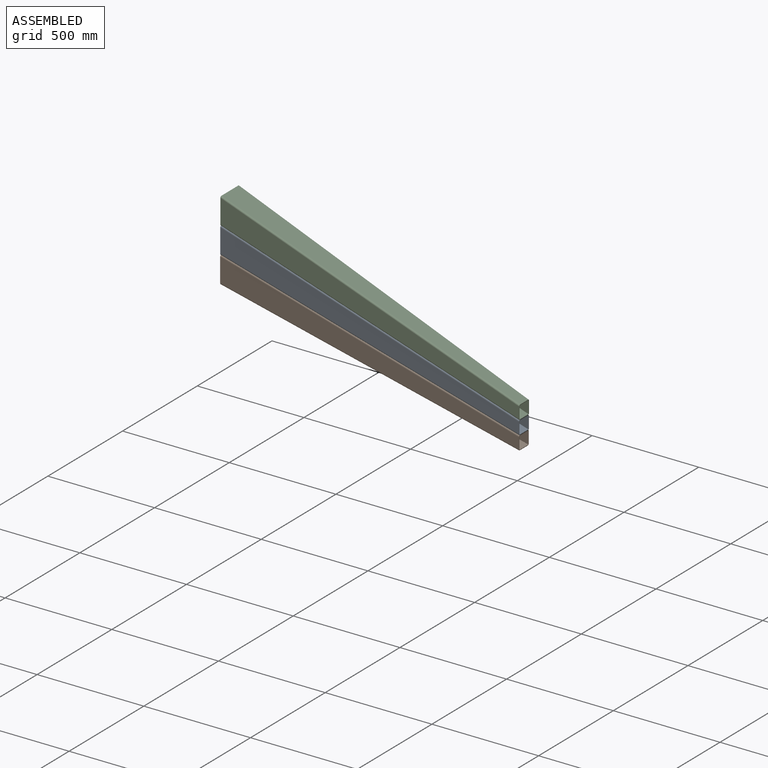
[diagram: assembled view]
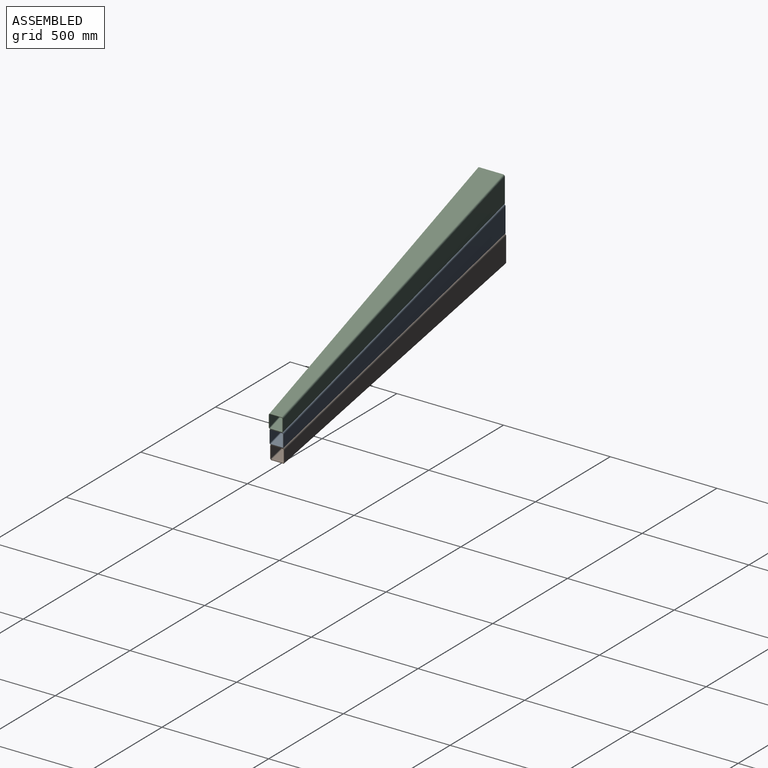
[diagram: assembled view, second angle]
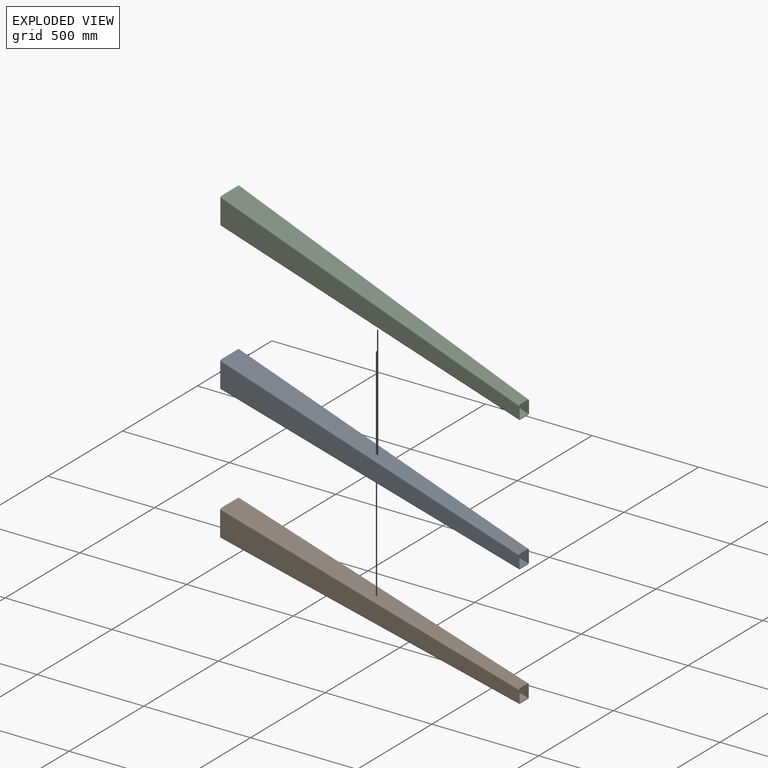
[diagram: exploded view]
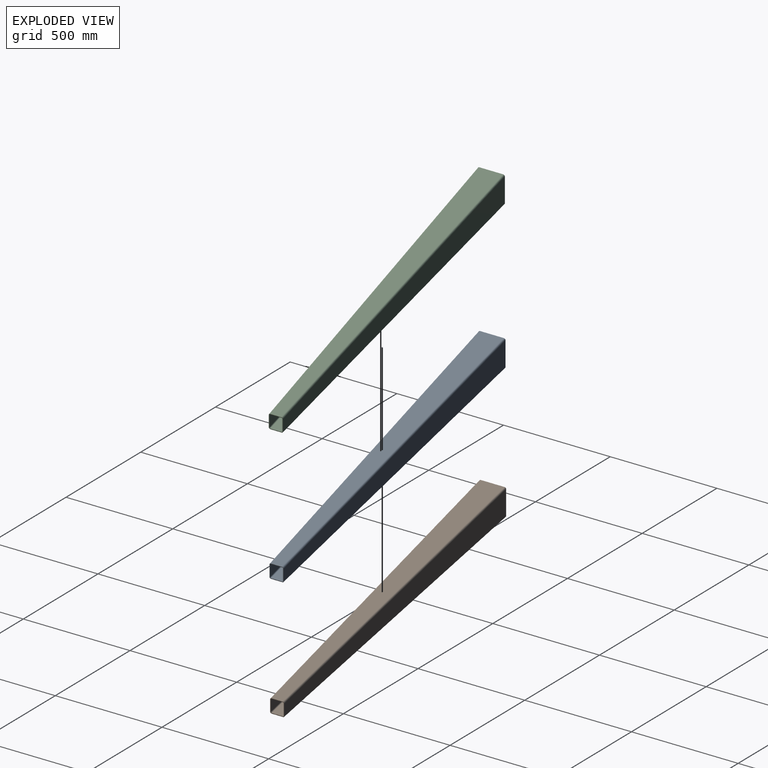
[diagram: exploded view, second angle]
ASSEMBLY  parts=3 mates=2
PART A: 30 faces, bbox 1404x126x515.7 mm
  f0: plane 51.65x3mm, normal (1,0,0), area 154.9mm2, adj f2,f3,f17,f27
  f1: plane 111.65x3mm, normal (-1,0,0), area 334.9mm2, adj f2,f3,f18,f26
  f2: plane 1400x501.65mm, normal (0,-1,0), area 114304.6mm2, adj f0,f1,f19,f28
  f3: plane 1400x501.65mm, normal (0,1,0), area 114304.6mm2, adj f0,f1,f20,f29
  f4: plane 52.05x2.86mm, normal (0.95,0,-0.31), area 156.1mm2, adj f6,f7,f13,f17
  f5: plane 112.05x2.86mm, normal (-0.95,0,0.31), area 336.1mm2, adj f6,f7,f14,f18
  f6: plane 1400x450mm, normal (0.31,0,0.95), area 120656.4mm2, adj f4,f5,f15,f19
  f7: plane 1400x450mm, normal (-0.31,0,-0.95), area 120656.4mm2, adj f4,f5,f16,f20
  f8: plane 1400.13x390mm, normal (-0.27,0.01,-0.96), area 4363.6mm2, adj f9,f10,f11,f12
  f9: plane 115.83x3mm, normal (-1,0.04,0), area 347.5mm2, adj f8,f11,f12,f14
  f10: plane 55.83x3mm, normal (1,-0.04,0), area 167.5mm2, adj f8,f11,f12,f13
  f11: plane 1400x505.83mm, normal (0.04,1,0), area 120276.1mm2, adj f8,f9,f10,f15
  f12: plane 1400x505.83mm, normal (-0.04,-1,0), area 120276.1mm2, adj f8,f9,f10,f16
  f13: bspline ~7.01x6.95mm, area 26.2mm2, adj f4,f10,f15,f16
  f14: bspline ~7x6.95mm, area 26.1mm2, adj f5,f9,f15,f16
  f15: cylinder r=7mm len=1402.91mm, axis (0.95,-0.04,-0.31), area 16044.2mm2, adj f6,f11,f13,f14
  f16: cylinder r=4mm len=1402.12mm, axis (0.95,-0.04,-0.31), area 9168.1mm2, adj f7,f12,f13,f14
  f17: bspline ~7.08x7mm, area 26.5mm2, adj f0,f4,f19,f20
  f18: bspline ~7.06x7mm, area 26.3mm2, adj f1,f5,f19,f20
  f19: cylinder r=7mm len=1403.37mm, axis (0.95,0,-0.31), area 16166.1mm2, adj f2,f6,f17,f18
  f20: cylinder r=4mm len=1402.45mm, axis (0.95,0,-0.31), area 9237.8mm2, adj f3,f7,f17,f18
  f21: plane 115.98x2.89mm, normal (-0.96,0,0.27), area 347.9mm2, adj f22,f24,f25,f26
  f22: plane 1400.81x392.89mm, normal (0.04,1,-0.01), area 4363.6mm2, adj f21,f23,f24,f25
  f23: plane 55.98x2.89mm, normal (0.96,0,-0.27), area 167.9mm2, adj f22,f24,f25,f27
  f24: plane 1400x390mm, normal (-0.27,0,-0.96), area 124955.3mm2, adj f21,f22,f23,f28
  f25: plane 1400x390mm, normal (0.27,0,0.96), area 124955.3mm2, adj f21,f22,f23,f29
  f26: bspline ~7.06x7mm, area 26.3mm2, adj f1,f21,f28,f29
  f27: bspline ~7.04x7mm, area 26.2mm2, adj f0,f23,f28,f29
  f28: cylinder r=7mm len=1402.95mm, axis (-0.96,0,0.27), area 15979.9mm2, adj f2,f24,f26,f27
  f29: cylinder r=4mm len=1402.15mm, axis (-0.96,0,0.27), area 9131.4mm2, adj f3,f25,f26,f27
PART B: 30 faces, bbox 1403.5x126x455.8 mm
  f0: plane 111.74x3mm, normal (-1,0,0), area 335.2mm2, adj f2,f3,f10,f26
  f1: plane 51.74x3mm, normal (1,0,0), area 155.2mm2, adj f2,f3,f9,f27
  f2: plane 1400x441.74mm, normal (0,-1,0), area 114433.3mm2, adj f0,f1,f11,f28
  f3: plane 1400x441.74mm, normal (0,1,0), area 114433.3mm2, adj f0,f1,f12,f29
  f4: plane 55.98x2.92mm, normal (0.97,0,-0.23), area 167.9mm2, adj f6,f7,f8,f9
  f5: plane 115.98x2.92mm, normal (-0.97,0,0.23), area 347.9mm2, adj f6,f7,f8,f10
  f6: plane 1400.69x332.92mm, normal (0.04,1,-0.01), area 4318.9mm2, adj f4,f5,f7,f8
  f7: plane 1400x330mm, normal (-0.23,0,-0.97), area 123670.8mm2, adj f4,f5,f6,f11
  f8: plane 1400x330mm, normal (0.23,0,0.97), area 123670.8mm2, adj f4,f5,f6,f12
  f9: bspline ~7.03x7mm, area 26.1mm2, adj f1,f4,f11,f12
  f10: bspline ~7.04x7mm, area 26.2mm2, adj f0,f5,f11,f12
  f11: cylinder r=7mm len=1402.52mm, axis (0.97,0,-0.23), area 15815.7mm2, adj f2,f7,f9,f10
  f12: cylinder r=4mm len=1401.84mm, axis (0.97,0,-0.23), area 9037.5mm2, adj f3,f8,f9,f10
  f13: plane 112.04x2.89mm, normal (-0.96,0,0.27), area 336.1mm2, adj f15,f16,f22,f26
  f14: plane 52.04x2.89mm, normal (0.96,0,-0.27), area 156.1mm2, adj f15,f16,f23,f27
  f15: plane 1400x390mm, normal (0.27,0,0.96), area 119232.7mm2, adj f13,f14,f24,f28
  f16: plane 1400x390mm, normal (-0.27,0,-0.96), area 119232.7mm2, adj f13,f14,f25,f29
  f17: plane 55.88x3mm, normal (1,-0.04,0), area 167.6mm2, adj f18,f20,f21,f23
  f18: plane 1400.13x330mm, normal (-0.23,0.01,-0.97), area 4318.9mm2, adj f17,f19,f20,f21
  f19: plane 115.88x3mm, normal (-1,0.04,0), area 347.6mm2, adj f18,f20,f21,f22
  f20: plane 1400x445.88mm, normal (0.04,1,0), area 120335.2mm2, adj f17,f18,f19,f24
  f21: plane 1400x445.88mm, normal (-0.04,-1,0), area 120335.2mm2, adj f17,f18,f19,f25
  f22: bspline ~6.99x6.96mm, area 26mm2, adj f13,f19,f24,f25
  f23: bspline ~7x6.96mm, area 26.1mm2, adj f14,f17,f24,f25
  f24: cylinder r=7mm len=1402.5mm, axis (-0.96,0.04,0.27), area 15873.3mm2, adj f15,f20,f22,f23
  f25: cylinder r=4mm len=1401.82mm, axis (-0.96,0.04,0.27), area 9070.4mm2, adj f16,f21,f22,f23
  f26: bspline ~7.04x7mm, area 26.2mm2, adj f0,f13,f28,f29
  f27: bspline ~7.06x7mm, area 26.3mm2, adj f1,f14,f28,f29
  f28: cylinder r=7mm len=1402.95mm, axis (-0.96,0,0.27), area 15979.9mm2, adj f2,f15,f26,f27
  f29: cylinder r=4mm len=1402.15mm, axis (-0.96,0,0.27), area 9131.4mm2, adj f3,f16,f26,f27
PART C: 30 faces, bbox 1404.5x126x575.7 mm
  f0: plane 51.54x3mm, normal (1,0,0), area 154.6mm2, adj f2,f3,f18,f26
  f1: plane 111.54x3mm, normal (-1,0,0), area 334.6mm2, adj f2,f3,f17,f27
  f2: plane 1400x561.54mm, normal (0,-1,0), area 114157.8mm2, adj f0,f1,f19,f28
  f3: plane 1400x561.54mm, normal (0,1,0), area 114157.8mm2, adj f0,f1,f20,f29
  f4: plane 112.06x2.82mm, normal (-0.94,0,0.34), area 336.2mm2, adj f6,f7,f13,f17
  f5: plane 52.06x2.82mm, normal (0.94,0,-0.34), area 156.2mm2, adj f6,f7,f14,f18
  f6: plane 1400x510mm, normal (0.34,0,0.94), area 122262mm2, adj f4,f5,f15,f19
  f7: plane 1400x510mm, normal (-0.34,0,-0.94), area 122262mm2, adj f4,f5,f16,f20
  f8: plane 115.78x3mm, normal (-1,0.04,0), area 347.4mm2, adj f10,f11,f12,f13
  f9: plane 55.78x3mm, normal (1,-0.04,0), area 167.4mm2, adj f10,f11,f12,f14
  f10: plane 1400.13x450mm, normal (-0.31,0.01,-0.95), area 4415.3mm2, adj f8,f9,f11,f12
  f11: plane 1400x565.78mm, normal (0.04,1,0), area 120208.2mm2, adj f8,f9,f10,f15
  f12: plane 1400x565.78mm, normal (-0.04,-1,0), area 120208.2mm2, adj f8,f9,f10,f16
  f13: bspline ~7.01x6.94mm, area 26.1mm2, adj f4,f8,f15,f16
  f14: bspline ~7.02x6.94mm, area 26.3mm2, adj f5,f9,f15,f16
  f15: cylinder r=7mm len=1403.31mm, axis (-0.94,0.04,0.34), area 16239.6mm2, adj f6,f11,f13,f14
  f16: cylinder r=4mm len=1402.4mm, axis (-0.94,0.04,0.34), area 9279.7mm2, adj f7,f12,f13,f14
  f17: bspline ~7.08x7mm, area 26.4mm2, adj f1,f4,f19,f20
  f18: bspline ~7.1x7mm, area 26.6mm2, adj f0,f5,f19,f20
  f19: cylinder r=7mm len=1403.77mm, axis (-0.94,0,0.34), area 16379.6mm2, adj f2,f6,f17,f18
  f20: cylinder r=4mm len=1402.74mm, axis (-0.94,0,0.34), area 9359.8mm2, adj f3,f7,f17,f18
  f21: plane 55.98x2.86mm, normal (0.95,0,-0.31), area 167.9mm2, adj f23,f24,f25,f26
  f22: plane 115.98x2.86mm, normal (-0.95,0,0.31), area 347.9mm2, adj f23,f24,f25,f27
  f23: plane 1400.92x452.86mm, normal (0.04,1,-0.01), area 4415.3mm2, adj f21,f22,f24,f25
  f24: plane 1400x450mm, normal (-0.31,0,-0.95), area 126437.4mm2, adj f21,f22,f23,f28
  f25: plane 1400x450mm, normal (0.31,0,0.95), area 126437.4mm2, adj f21,f22,f23,f29
  f26: bspline ~7.06x7mm, area 26.3mm2, adj f0,f21,f28,f29
  f27: bspline ~7.08x7mm, area 26.5mm2, adj f1,f22,f28,f29
  f28: cylinder r=7mm len=1403.37mm, axis (0.95,0,-0.31), area 16166.1mm2, adj f2,f24,f26,f27
  f29: cylinder r=4mm len=1402.45mm, axis (0.95,0,-0.31), area 9237.8mm2, adj f3,f25,f26,f27
PLACE A t=(1.61,-1.97,5.78)mm
PLACE B at identity fixed
PLACE C t=(3.45,-3.93,11.49)mm
MATE fastened A.f6 <-> C.f24  axis (0.31,0,0.95) through (-697.47,-141.94,233.64)mm
MATE fastened B.f15 <-> A.f24  axis (0.27,0,0.96) through (-699.19,-139.98,107.89)mm
